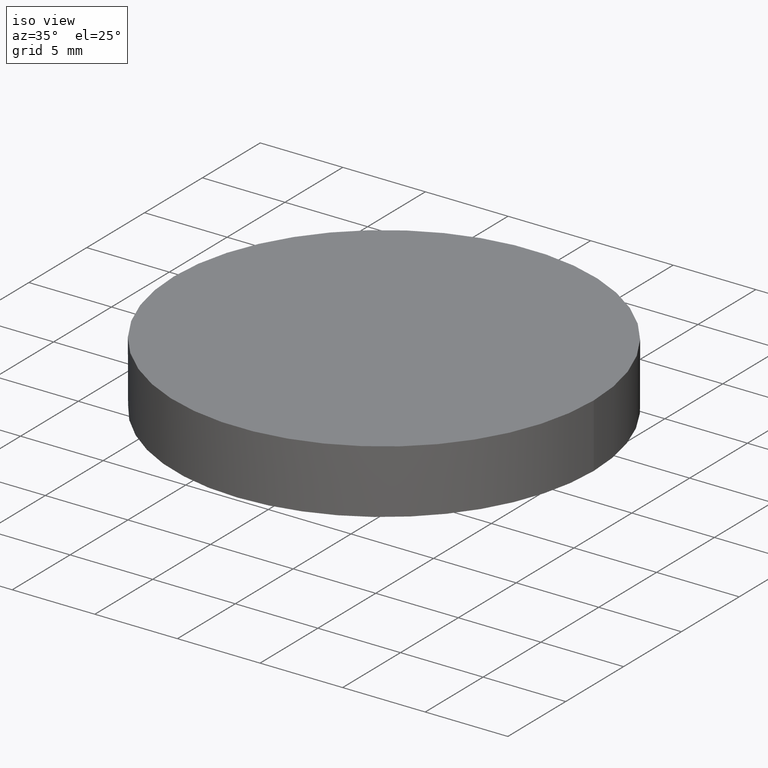
[diagram: clean part render]
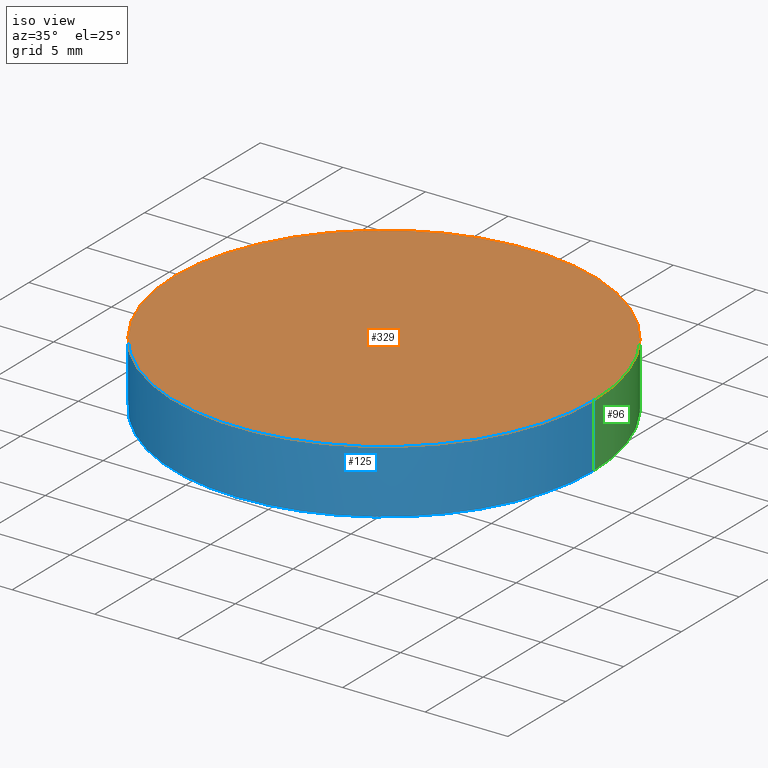
[diagram: same view with three faces highlighted in distinct colors, each labeled with its STEP entity id]
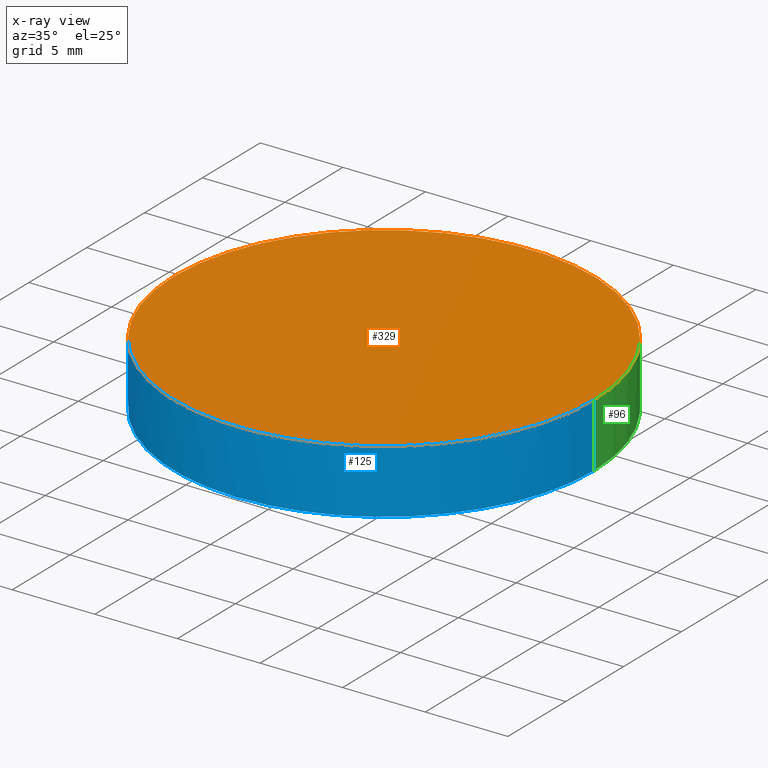
[diagram: x-ray of the same camera — body ghosted, the three highlighted faces saturated]
A machine part, iso view with three faces highlighted in distinct colors.
The next image is the same camera in x-ray (body ghosted, the three faces saturated) — at least one of them is partly hidden behind the body in this view.
Their STEP definitions:

[orange] entity #329 — the highlighted planar face has unit normal (0, 0, 1).
#31 = ORIENTED_EDGE ( 'NONE', *, *, #36, .F. ) ;
#36 = EDGE_CURVE ( 'NONE', #163, #377, #273, .T. ) ;
#72 = CARTESIAN_POINT ( 'NONE',  ( 8.881784197001250351E-16, -8.881784197001250351E-16, 5.000000000000000000 ) ) ;
#77 = DIRECTION ( 'NONE',  ( -0.000000000000000000, -0.000000000000000000, -1.000000000000000000 ) ) ;
#79 = DIRECTION ( 'NONE',  ( 1.000000000000000000, 0.000000000000000000, -0.000000000000000000 ) ) ;
#81 = CARTESIAN_POINT ( 'NONE',  ( 8.881784197001250351E-16, -8.881784197001250351E-16, 5.000000000000000000 ) ) ;
#82 = AXIS2_PLACEMENT_3D ( 'NONE', #81, #77, #205 ) ;
#103 = AXIS2_PLACEMENT_3D ( 'NONE', #72, #315, #166 ) ;
#126 = EDGE_LOOP ( 'NONE', ( #31, #277 ) ) ;
#152 = CARTESIAN_POINT ( 'NONE',  ( 12.70000000000000107, -8.881784197001250351E-16, 5.000000000000000000 ) ) ;
#163 = VERTEX_POINT ( 'NONE', #152 ) ;
#166 = DIRECTION ( 'NONE',  ( 1.000000000000000000, 0.000000000000000000, 0.000000000000000000 ) ) ;
#171 = FACE_OUTER_BOUND ( 'NONE', #126, .T. ) ;
#205 = DIRECTION ( 'NONE',  ( 1.000000000000000000, 0.000000000000000000, 0.000000000000000000 ) ) ;
#218 = AXIS2_PLACEMENT_3D ( 'NONE', #291, #334, #79 ) ;
#236 = PLANE ( 'NONE',  #218 ) ;
#273 = CIRCLE ( 'NONE', #103, 12.69999999999999929 ) ;
#277 = ORIENTED_EDGE ( 'NONE', *, *, #398, .F. ) ;
#291 = CARTESIAN_POINT ( 'NONE',  ( 0.000000000000000000, 26.11199999999999832, 5.000000000000000000 ) ) ;
#315 = DIRECTION ( 'NONE',  ( -0.000000000000000000, -0.000000000000000000, -1.000000000000000000 ) ) ;
#329 = ADVANCED_FACE ( 'NONE', ( #171 ), #236, .T. ) ;
#334 = DIRECTION ( 'NONE',  ( 0.000000000000000000, 0.000000000000000000, 1.000000000000000000 ) ) ;
#360 = CARTESIAN_POINT ( 'NONE',  ( -12.69999999999999751, 6.671230152170134961E-16, 5.000000000000000000 ) ) ;
#361 = CIRCLE ( 'NONE', #82, 12.69999999999999929 ) ;
#377 = VERTEX_POINT ( 'NONE', #360 ) ;
#398 = EDGE_CURVE ( 'NONE', #377, #163, #361, .T. ) ;

[blue] entity #125 — the highlighted cylindrical surface (partial cylindrical patch) has radius 12.7 mm, axis along (0, 0, 1).
#1 = ORIENTED_EDGE ( 'NONE', *, *, #292, .F. ) ;
#16 = CARTESIAN_POINT ( 'NONE',  ( 8.881784197001250351E-16, -8.881784197001250351E-16, 1.142824642375869892 ) ) ;
#20 = VECTOR ( 'NONE', #35, 1000.000000000000000 ) ;
#28 = AXIS2_PLACEMENT_3D ( 'NONE', #16, #116, #88 ) ;
#35 = DIRECTION ( 'NONE',  ( 0.000000000000000000, 0.000000000000000000, 1.000000000000000000 ) ) ;
#36 = EDGE_CURVE ( 'NONE', #163, #377, #273, .T. ) ;
#69 = VERTEX_POINT ( 'NONE', #325 ) ;
#72 = CARTESIAN_POINT ( 'NONE',  ( 8.881784197001250351E-16, -8.881784197001250351E-16, 5.000000000000000000 ) ) ;
#88 = DIRECTION ( 'NONE',  ( 1.000000000000000000, 0.000000000000000000, 0.000000000000000000 ) ) ;
#93 = CARTESIAN_POINT ( 'NONE',  ( 12.70000000000000107, -8.881784197001250351E-16, 1.142824642375869892 ) ) ;
#102 = LINE ( 'NONE', #276, #20 ) ;
#103 = AXIS2_PLACEMENT_3D ( 'NONE', #72, #315, #166 ) ;
#114 = CIRCLE ( 'NONE', #393, 12.70000000000000284 ) ;
#116 = DIRECTION ( 'NONE',  ( 0.000000000000000000, 0.000000000000000000, 1.000000000000000000 ) ) ;
#125 = ADVANCED_FACE ( 'NONE', ( #367 ), #365, .T. ) ;
#135 = CIRCLE ( 'NONE', #186, 12.70000000000000284 ) ;
#139 = EDGE_CURVE ( 'NONE', #69, #193, #114, .T. ) ;
#145 = DIRECTION ( 'NONE',  ( -1.000000000000000000, 0.000000000000000000, 0.000000000000000000 ) ) ;
#152 = CARTESIAN_POINT ( 'NONE',  ( 12.70000000000000107, -8.881784197001250351E-16, 5.000000000000000000 ) ) ;
#163 = VERTEX_POINT ( 'NONE', #152 ) ;
#166 = DIRECTION ( 'NONE',  ( 1.000000000000000000, 0.000000000000000000, 0.000000000000000000 ) ) ;
#176 = CARTESIAN_POINT ( 'NONE',  ( 1.734723475976807094E-15, -1.345898117247522881E-15, 1.142824642375869892 ) ) ;
#186 = AXIS2_PLACEMENT_3D ( 'NONE', #359, #202, #235 ) ;
#188 = LINE ( 'NONE', #93, #376 ) ;
#193 = VERTEX_POINT ( 'NONE', #405 ) ;
#201 = CARTESIAN_POINT ( 'NONE',  ( -12.70000000000000107, 6.671230152170136933E-16, 1.142824642375869892 ) ) ;
#202 = DIRECTION ( 'NONE',  ( -0.000000000000000000, -0.000000000000000000, -1.000000000000000000 ) ) ;
#210 = EDGE_CURVE ( 'NONE', #280, #377, #102, .T. ) ;
#222 = DIRECTION ( 'NONE',  ( 0.000000000000000000, 0.000000000000000000, 1.000000000000000000 ) ) ;
#224 = EDGE_LOOP ( 'NONE', ( #381, #1, #404, #349, #322 ) ) ;
#235 = DIRECTION ( 'NONE',  ( -1.000000000000000000, 0.000000000000000000, 0.000000000000000000 ) ) ;
#243 = EDGE_CURVE ( 'NONE', #69, #163, #188, .T. ) ;
#271 = DIRECTION ( 'NONE',  ( -0.000000000000000000, -0.000000000000000000, -1.000000000000000000 ) ) ;
#273 = CIRCLE ( 'NONE', #103, 12.69999999999999929 ) ;
#276 = CARTESIAN_POINT ( 'NONE',  ( -12.69999999999999751, 6.671230152170134961E-16, 1.142824642375869892 ) ) ;
#280 = VERTEX_POINT ( 'NONE', #201 ) ;
#292 = EDGE_CURVE ( 'NONE', #193, #280, #135, .T. ) ;
#315 = DIRECTION ( 'NONE',  ( -0.000000000000000000, -0.000000000000000000, -1.000000000000000000 ) ) ;
#322 = ORIENTED_EDGE ( 'NONE', *, *, #36, .T. ) ;
#325 = CARTESIAN_POINT ( 'NONE',  ( 12.70000000000000462, -8.881784197001248379E-16, 1.142824642375869892 ) ) ;
#349 = ORIENTED_EDGE ( 'NONE', *, *, #243, .T. ) ;
#359 = CARTESIAN_POINT ( 'NONE',  ( 1.734723475976807094E-15, -1.345898117247522881E-15, 1.142824642375869892 ) ) ;
#360 = CARTESIAN_POINT ( 'NONE',  ( -12.69999999999999751, 6.671230152170134961E-16, 5.000000000000000000 ) ) ;
#365 = CYLINDRICAL_SURFACE ( 'NONE', #28, 12.69999999999999929 ) ;
#367 = FACE_OUTER_BOUND ( 'NONE', #224, .T. ) ;
#376 = VECTOR ( 'NONE', #222, 1000.000000000000000 ) ;
#377 = VERTEX_POINT ( 'NONE', #360 ) ;
#381 = ORIENTED_EDGE ( 'NONE', *, *, #210, .F. ) ;
#393 = AXIS2_PLACEMENT_3D ( 'NONE', #176, #271, #145 ) ;
#404 = ORIENTED_EDGE ( 'NONE', *, *, #139, .F. ) ;
#405 = CARTESIAN_POINT ( 'NONE',  ( -1.555301434917141588E-15, -12.70000000000000462, 1.142824642375869892 ) ) ;

[green] entity #96 — the highlighted cylindrical surface (partial cylindrical patch) has radius 12.7 mm, axis along (0, 0, 1).
#5 = ORIENTED_EDGE ( 'NONE', *, *, #243, .F. ) ;
#20 = VECTOR ( 'NONE', #35, 1000.000000000000000 ) ;
#24 = DIRECTION ( 'NONE',  ( -1.000000000000000000, 0.000000000000000000, 0.000000000000000000 ) ) ;
#33 = CYLINDRICAL_SURFACE ( 'NONE', #49, 12.69999999999999929 ) ;
#35 = DIRECTION ( 'NONE',  ( 0.000000000000000000, 0.000000000000000000, 1.000000000000000000 ) ) ;
#38 = FACE_OUTER_BOUND ( 'NONE', #355, .T. ) ;
#45 = AXIS2_PLACEMENT_3D ( 'NONE', #363, #241, #24 ) ;
#49 = AXIS2_PLACEMENT_3D ( 'NONE', #196, #286, #159 ) ;
#64 = CARTESIAN_POINT ( 'NONE',  ( -3.851859888774471706E-31, 12.70000000000000284, 1.142824642375869892 ) ) ;
#69 = VERTEX_POINT ( 'NONE', #325 ) ;
#77 = DIRECTION ( 'NONE',  ( -0.000000000000000000, -0.000000000000000000, -1.000000000000000000 ) ) ;
#81 = CARTESIAN_POINT ( 'NONE',  ( 8.881784197001250351E-16, -8.881784197001250351E-16, 5.000000000000000000 ) ) ;
#82 = AXIS2_PLACEMENT_3D ( 'NONE', #81, #77, #205 ) ;
#93 = CARTESIAN_POINT ( 'NONE',  ( 12.70000000000000107, -8.881784197001250351E-16, 1.142824642375869892 ) ) ;
#96 = ADVANCED_FACE ( 'NONE', ( #38 ), #33, .T. ) ;
#102 = LINE ( 'NONE', #276, #20 ) ;
#121 = EDGE_CURVE ( 'NONE', #189, #69, #154, .T. ) ;
#150 = CARTESIAN_POINT ( 'NONE',  ( 1.734723475976807094E-15, -1.345898117247522881E-15, 1.142824642375869892 ) ) ;
#152 = CARTESIAN_POINT ( 'NONE',  ( 12.70000000000000107, -8.881784197001250351E-16, 5.000000000000000000 ) ) ;
#154 = CIRCLE ( 'NONE', #332, 12.70000000000000284 ) ;
#157 = ORIENTED_EDGE ( 'NONE', *, *, #121, .F. ) ;
#159 = DIRECTION ( 'NONE',  ( 1.000000000000000000, 0.000000000000000000, 0.000000000000000000 ) ) ;
#163 = VERTEX_POINT ( 'NONE', #152 ) ;
#170 = EDGE_CURVE ( 'NONE', #280, #189, #310, .T. ) ;
#188 = LINE ( 'NONE', #93, #376 ) ;
#189 = VERTEX_POINT ( 'NONE', #64 ) ;
#196 = CARTESIAN_POINT ( 'NONE',  ( 8.881784197001250351E-16, -8.881784197001250351E-16, 1.142824642375869892 ) ) ;
#201 = CARTESIAN_POINT ( 'NONE',  ( -12.70000000000000107, 6.671230152170136933E-16, 1.142824642375869892 ) ) ;
#205 = DIRECTION ( 'NONE',  ( 1.000000000000000000, 0.000000000000000000, 0.000000000000000000 ) ) ;
#210 = EDGE_CURVE ( 'NONE', #280, #377, #102, .T. ) ;
#222 = DIRECTION ( 'NONE',  ( 0.000000000000000000, 0.000000000000000000, 1.000000000000000000 ) ) ;
#241 = DIRECTION ( 'NONE',  ( -0.000000000000000000, -0.000000000000000000, -1.000000000000000000 ) ) ;
#243 = EDGE_CURVE ( 'NONE', #69, #163, #188, .T. ) ;
#252 = ORIENTED_EDGE ( 'NONE', *, *, #170, .F. ) ;
#255 = ORIENTED_EDGE ( 'NONE', *, *, #210, .T. ) ;
#276 = CARTESIAN_POINT ( 'NONE',  ( -12.69999999999999751, 6.671230152170134961E-16, 1.142824642375869892 ) ) ;
#280 = VERTEX_POINT ( 'NONE', #201 ) ;
#286 = DIRECTION ( 'NONE',  ( 0.000000000000000000, 0.000000000000000000, 1.000000000000000000 ) ) ;
#310 = CIRCLE ( 'NONE', #45, 12.70000000000000284 ) ;
#325 = CARTESIAN_POINT ( 'NONE',  ( 12.70000000000000462, -8.881784197001248379E-16, 1.142824642375869892 ) ) ;
#332 = AXIS2_PLACEMENT_3D ( 'NONE', #150, #395, #370 ) ;
#347 = ORIENTED_EDGE ( 'NONE', *, *, #398, .T. ) ;
#355 = EDGE_LOOP ( 'NONE', ( #252, #255, #347, #5, #157 ) ) ;
#360 = CARTESIAN_POINT ( 'NONE',  ( -12.69999999999999751, 6.671230152170134961E-16, 5.000000000000000000 ) ) ;
#361 = CIRCLE ( 'NONE', #82, 12.69999999999999929 ) ;
#363 = CARTESIAN_POINT ( 'NONE',  ( 1.734723475976807094E-15, -1.345898117247522881E-15, 1.142824642375869892 ) ) ;
#370 = DIRECTION ( 'NONE',  ( -1.000000000000000000, 0.000000000000000000, 0.000000000000000000 ) ) ;
#376 = VECTOR ( 'NONE', #222, 1000.000000000000000 ) ;
#377 = VERTEX_POINT ( 'NONE', #360 ) ;
#395 = DIRECTION ( 'NONE',  ( -0.000000000000000000, -0.000000000000000000, -1.000000000000000000 ) ) ;
#398 = EDGE_CURVE ( 'NONE', #377, #163, #361, .T. ) ;